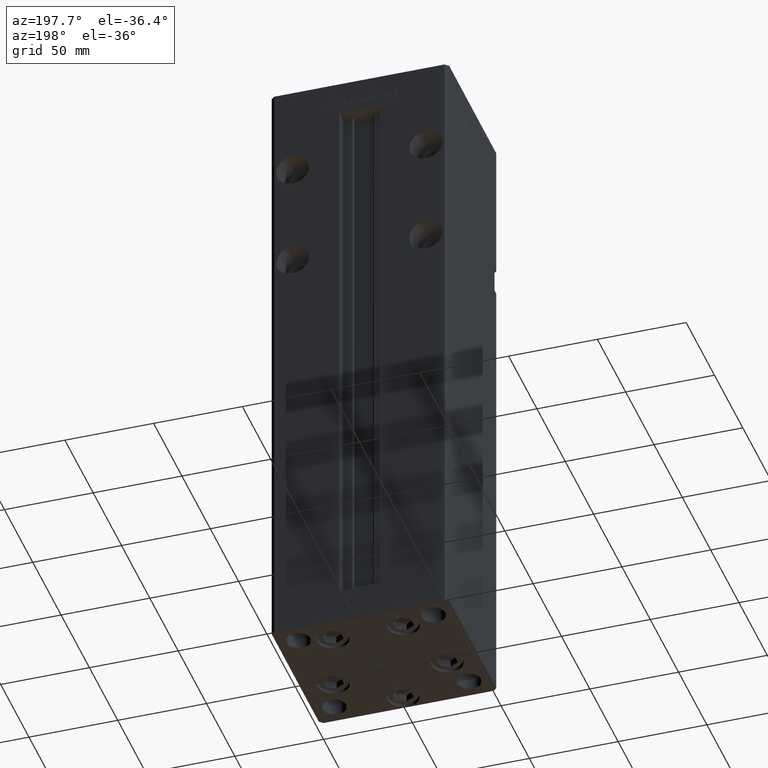
[diagram: clean part render]
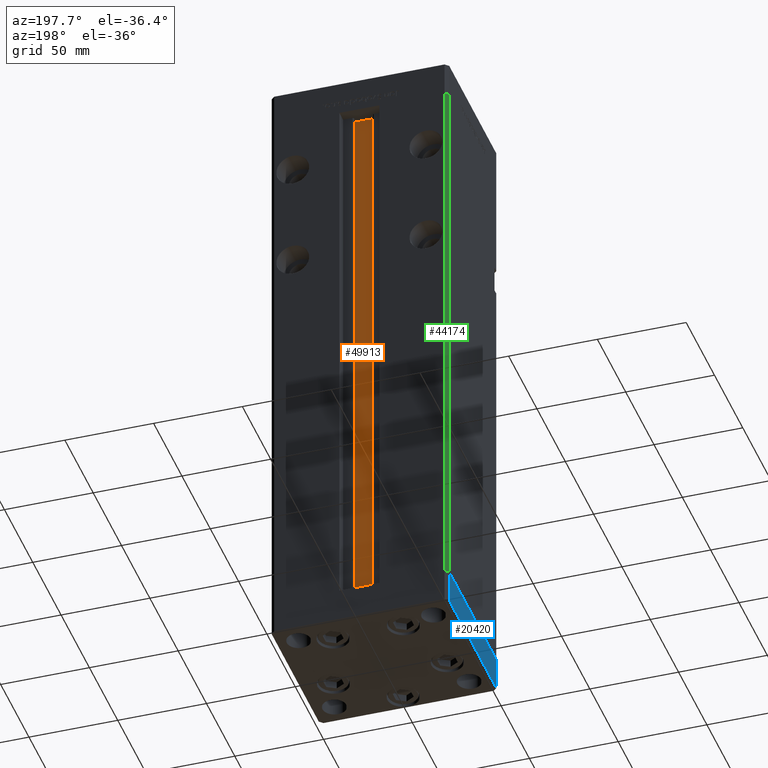
[diagram: same view with three faces highlighted in distinct colors, each labeled with its STEP entity id]
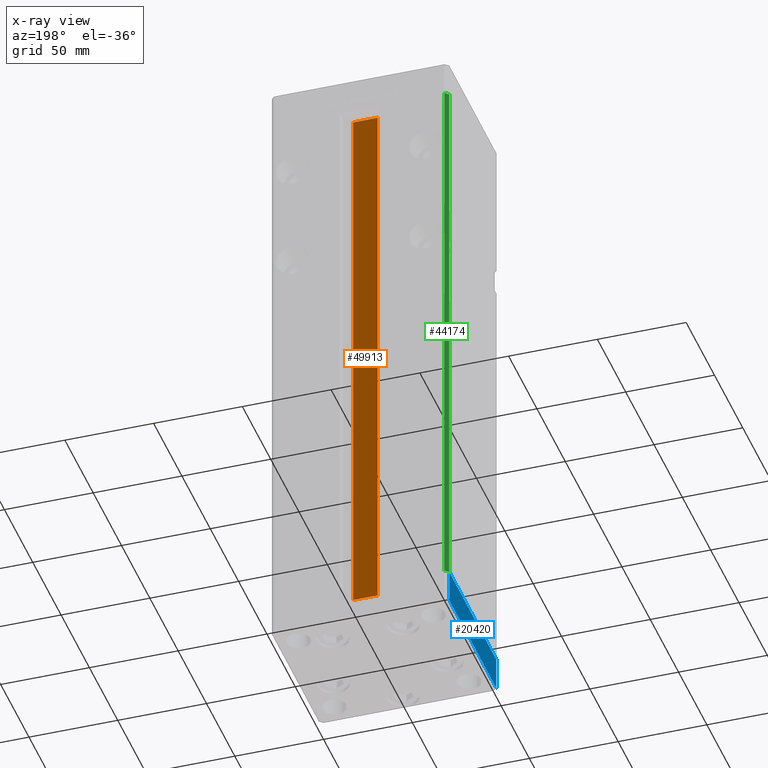
[diagram: x-ray of the same camera — body ghosted, the three highlighted faces saturated]
A machine part, auxiliary view with three faces highlighted in distinct colors.
The next image is the same camera in x-ray (body ghosted, the three faces saturated) — at least one of them is partly hidden behind the body in this view.
Their STEP definitions:

[orange] entity #49913 — the highlighted planar face has unit normal (0, -1, 0).
#5512 = FACE_OUTER_BOUND ( 'NONE', #8457, .T. ) ;
#5887 = LINE ( 'NONE', #17430, #48383 ) ;
#6080 = CARTESIAN_POINT ( 'NONE',  ( 6.876153656360465050, 32.99999999999986500, 0.000000000000000000 ) ) ;
#6786 = ORIENTED_EDGE ( 'NONE', *, *, #26478, .T. ) ;
#7246 = VERTEX_POINT ( 'NONE', #47510 ) ;
#7488 = EDGE_CURVE ( 'NONE', #12341, #36161, #9813, .T. ) ;
#8457 = EDGE_LOOP ( 'NONE', ( #29293, #52105, #6786, #41249 ) ) ;
#9813 = LINE ( 'NONE', #6080, #19555 ) ;
#12341 = VERTEX_POINT ( 'NONE', #13736 ) ;
#12616 = LINE ( 'NONE', #44599, #33619 ) ;
#13736 = CARTESIAN_POINT ( 'NONE',  ( -6.876153656360465050, 32.99999999999986500, 0.000000000000000000 ) ) ;
#13851 = DIRECTION ( 'NONE',  ( 1.000000000000000000, -0.000000000000000000, -0.000000000000000000 ) ) ;
#16894 = DIRECTION ( 'NONE',  ( -1.000000000000000000, 0.000000000000000000, 0.000000000000000000 ) ) ;
#17430 = CARTESIAN_POINT ( 'NONE',  ( 6.876153656360465050, 32.99999999999986500, 0.000000000000000000 ) ) ;
#18351 = EDGE_CURVE ( 'NONE', #43061, #7246, #12616, .T. ) ;
#19555 = VECTOR ( 'NONE', #13851, 1000.000000000000000 ) ;
#22488 = DIRECTION ( 'NONE',  ( -0.000000000000000000, -0.000000000000000000, 1.000000000000000000 ) ) ;
#22509 = DIRECTION ( 'NONE',  ( -0.000000000000000000, -0.000000000000000000, 1.000000000000000000 ) ) ;
#25761 = EDGE_CURVE ( 'NONE', #36161, #43061, #5887, .T. ) ;
#26478 = EDGE_CURVE ( 'NONE', #12341, #7246, #31093, .T. ) ;
#29293 = ORIENTED_EDGE ( 'NONE', *, *, #25761, .F. ) ;
#29967 = AXIS2_PLACEMENT_3D ( 'NONE', #42042, #46881, #37990 ) ;
#30467 = PLANE ( 'NONE',  #29967 ) ;
#31093 = LINE ( 'NONE', #34569, #52666 ) ;
#33619 = VECTOR ( 'NONE', #16894, 1000.000000000000000 ) ;
#34569 = CARTESIAN_POINT ( 'NONE',  ( -6.876153656360465050, 32.99999999999986500, 0.000000000000000000 ) ) ;
#36161 = VERTEX_POINT ( 'NONE', #39537 ) ;
#37990 = DIRECTION ( 'NONE',  ( 0.000000000000000000, 0.000000000000000000, -1.000000000000000000 ) ) ;
#39537 = CARTESIAN_POINT ( 'NONE',  ( 6.876153656360465050, 32.99999999999986500, 0.000000000000000000 ) ) ;
#41249 = ORIENTED_EDGE ( 'NONE', *, *, #18351, .F. ) ;
#42042 = CARTESIAN_POINT ( 'NONE',  ( 6.876153656360465050, 32.99999999999986500, 0.000000000000000000 ) ) ;
#43061 = VERTEX_POINT ( 'NONE', #47913 ) ;
#44599 = CARTESIAN_POINT ( 'NONE',  ( 0.000000000000000000, 32.99999999999986500, 318.5000000000000000 ) ) ;
#46881 = DIRECTION ( 'NONE',  ( 0.000000000000000000, -1.000000000000000000, -0.000000000000000000 ) ) ;
#47510 = CARTESIAN_POINT ( 'NONE',  ( -6.876153656360465050, 32.99999999999986500, 318.5000000000000000 ) ) ;
#47913 = CARTESIAN_POINT ( 'NONE',  ( 6.876153656360465050, 32.99999999999986500, 318.5000000000000000 ) ) ;
#48383 = VECTOR ( 'NONE', #22509, 1000.000000000000000 ) ;
#49913 = ADVANCED_FACE ( 'NONE', ( #5512 ), #30467, .F. ) ;
#52105 = ORIENTED_EDGE ( 'NONE', *, *, #7488, .F. ) ;
#52666 = VECTOR ( 'NONE', #22488, 1000.000000000000000 ) ;

[blue] entity #20420 — the highlighted planar face has unit normal (-1, -0, 0).
#704 = CARTESIAN_POINT ( 'NONE',  ( 49.99999999999992184, 41.49999999999998579, -19.00000000000000000 ) ) ;
#2359 = VECTOR ( 'NONE', #21954, 1000.000000000000000 ) ;
#2789 = CARTESIAN_POINT ( 'NONE',  ( 50.00000000000000000, -41.49999999999999289, 0.000000000000000000 ) ) ;
#3205 = CARTESIAN_POINT ( 'NONE',  ( 49.99999999999992184, 41.49999999999998579, 0.000000000000000000 ) ) ;
#6517 = ORIENTED_EDGE ( 'NONE', *, *, #8811, .F. ) ;
#8272 = LINE ( 'NONE', #9041, #43949 ) ;
#8300 = VERTEX_POINT ( 'NONE', #21127 ) ;
#8811 = EDGE_CURVE ( 'NONE', #8300, #34014, #23446, .T. ) ;
#8952 = DIRECTION ( 'NONE',  ( -1.003213576468515193E-15, 1.000000000000000000, 0.000000000000000000 ) ) ;
#9041 = CARTESIAN_POINT ( 'NONE',  ( 50.00000000000000000, -41.49999999999999289, -19.00000000000000000 ) ) ;
#9359 = LINE ( 'NONE', #37565, #2359 ) ;
#9447 = ORIENTED_EDGE ( 'NONE', *, *, #26539, .T. ) ;
#10602 = EDGE_LOOP ( 'NONE', ( #6517, #23252, #9447, #31188 ) ) ;
#11660 = DIRECTION ( 'NONE',  ( -1.003213576468515193E-15, 1.000000000000000000, 0.000000000000000000 ) ) ;
#20420 = ADVANCED_FACE ( 'NONE', ( #21034 ), #20515, .T. ) ;
#20515 = PLANE ( 'NONE',  #21659 ) ;
#21034 = FACE_OUTER_BOUND ( 'NONE', #10602, .T. ) ;
#21127 = CARTESIAN_POINT ( 'NONE',  ( 50.00000000000000000, -41.49999999999999289, 0.000000000000000000 ) ) ;
#21659 = AXIS2_PLACEMENT_3D ( 'NONE', #29098, #45515, #8952 ) ;
#21954 = DIRECTION ( 'NONE',  ( 0.000000000000000000, 0.000000000000000000, 1.000000000000000000 ) ) ;
#22027 = EDGE_CURVE ( 'NONE', #48017, #8300, #8272, .T. ) ;
#23252 = ORIENTED_EDGE ( 'NONE', *, *, #22027, .F. ) ;
#23446 = LINE ( 'NONE', #2789, #30724 ) ;
#26539 = EDGE_CURVE ( 'NONE', #48017, #42445, #32052, .T. ) ;
#29098 = CARTESIAN_POINT ( 'NONE',  ( 50.00000000000000000, -41.49999999999999289, -19.00000000000000000 ) ) ;
#30724 = VECTOR ( 'NONE', #40110, 1000.000000000000000 ) ;
#31188 = ORIENTED_EDGE ( 'NONE', *, *, #38304, .T. ) ;
#32052 = LINE ( 'NONE', #48477, #32868 ) ;
#32868 = VECTOR ( 'NONE', #11660, 1000.000000000000000 ) ;
#34014 = VERTEX_POINT ( 'NONE', #3205 ) ;
#37565 = CARTESIAN_POINT ( 'NONE',  ( 49.99999999999992184, 41.49999999999998579, -19.00000000000000000 ) ) ;
#38304 = EDGE_CURVE ( 'NONE', #42445, #34014, #9359, .T. ) ;
#40110 = DIRECTION ( 'NONE',  ( -1.003213576468515193E-15, 1.000000000000000000, 0.000000000000000000 ) ) ;
#42445 = VERTEX_POINT ( 'NONE', #704 ) ;
#43155 = CARTESIAN_POINT ( 'NONE',  ( 50.00000000000000000, -41.49999999999999289, -19.00000000000000000 ) ) ;
#43949 = VECTOR ( 'NONE', #49375, 1000.000000000000000 ) ;
#45515 = DIRECTION ( 'NONE',  ( 1.000000000000000000, 1.003213576468515193E-15, -0.000000000000000000 ) ) ;
#48017 = VERTEX_POINT ( 'NONE', #43155 ) ;
#48477 = CARTESIAN_POINT ( 'NONE',  ( 50.00000000000000000, -41.49999999999999289, -19.00000000000000000 ) ) ;
#49375 = DIRECTION ( 'NONE',  ( 0.000000000000000000, 0.000000000000000000, 1.000000000000000000 ) ) ;

[green] entity #44174 — the highlighted planar face has unit normal (0.7071, -0.7071, 0).
#793 = DIRECTION ( 'NONE',  ( 0.7071067811865487940, 0.7071067811865463515, 0.000000000000000000 ) ) ;
#1311 = FACE_OUTER_BOUND ( 'NONE', #49135, .T. ) ;
#1638 = CARTESIAN_POINT ( 'NONE',  ( -50.00000000000001421, 41.49999999999999289, 318.5000000000000000 ) ) ;
#3451 = ORIENTED_EDGE ( 'NONE', *, *, #8031, .F. ) ;
#8031 = EDGE_CURVE ( 'NONE', #24143, #29287, #37631, .T. ) ;
#8344 = PLANE ( 'NONE',  #27354 ) ;
#9850 = LINE ( 'NONE', #22183, #47519 ) ;
#10835 = LINE ( 'NONE', #11104, #17668 ) ;
#11104 = CARTESIAN_POINT ( 'NONE',  ( -48.00000000000000711, 43.50000000000000000, 318.5000000000000000 ) ) ;
#12367 = DIRECTION ( 'NONE',  ( 0.7071067811865463515, -0.7071067811865487940, 0.000000000000000000 ) ) ;
#12382 = LINE ( 'NONE', #41638, #24212 ) ;
#17668 = VECTOR ( 'NONE', #39562, 1000.000000000000000 ) ;
#18430 = DIRECTION ( 'NONE',  ( -0.7071067811865487940, -0.7071067811865463515, 0.000000000000000000 ) ) ;
#21244 = CARTESIAN_POINT ( 'NONE',  ( -48.00000000000000711, 43.50000000000000000, 0.000000000000000000 ) ) ;
#22183 = CARTESIAN_POINT ( 'NONE',  ( -48.00000000000000711, 43.50000000000000000, 0.000000000000000000 ) ) ;
#23789 = EDGE_CURVE ( 'NONE', #34886, #24143, #12382, .T. ) ;
#24143 = VERTEX_POINT ( 'NONE', #30212 ) ;
#24212 = VECTOR ( 'NONE', #24713, 1000.000000000000000 ) ;
#24713 = DIRECTION ( 'NONE',  ( -0.7071067811865487940, -0.7071067811865463515, 0.000000000000000000 ) ) ;
#27354 = AXIS2_PLACEMENT_3D ( 'NONE', #49442, #12367, #793 ) ;
#28034 = VECTOR ( 'NONE', #41933, 1000.000000000000000 ) ;
#28318 = EDGE_CURVE ( 'NONE', #52171, #29287, #9850, .T. ) ;
#29287 = VERTEX_POINT ( 'NONE', #31338 ) ;
#30212 = CARTESIAN_POINT ( 'NONE',  ( -50.00000000000001421, 41.49999999999999289, 318.5000000000000000 ) ) ;
#31338 = CARTESIAN_POINT ( 'NONE',  ( -50.00000000000001421, 41.49999999999999289, 0.000000000000000000 ) ) ;
#34886 = VERTEX_POINT ( 'NONE', #44504 ) ;
#35743 = ORIENTED_EDGE ( 'NONE', *, *, #39147, .T. ) ;
#37631 = LINE ( 'NONE', #1638, #28034 ) ;
#39147 = EDGE_CURVE ( 'NONE', #34886, #52171, #10835, .T. ) ;
#39562 = DIRECTION ( 'NONE',  ( -0.000000000000000000, -0.000000000000000000, -1.000000000000000000 ) ) ;
#40858 = ORIENTED_EDGE ( 'NONE', *, *, #28318, .T. ) ;
#41638 = CARTESIAN_POINT ( 'NONE',  ( -48.00000000000000711, 43.50000000000000000, 318.5000000000000000 ) ) ;
#41807 = ORIENTED_EDGE ( 'NONE', *, *, #23789, .F. ) ;
#41933 = DIRECTION ( 'NONE',  ( -0.000000000000000000, -0.000000000000000000, -1.000000000000000000 ) ) ;
#44174 = ADVANCED_FACE ( 'NONE', ( #1311 ), #8344, .F. ) ;
#44504 = CARTESIAN_POINT ( 'NONE',  ( -48.00000000000000711, 43.50000000000000000, 318.5000000000000000 ) ) ;
#47519 = VECTOR ( 'NONE', #18430, 1000.000000000000000 ) ;
#49135 = EDGE_LOOP ( 'NONE', ( #40858, #3451, #41807, #35743 ) ) ;
#49442 = CARTESIAN_POINT ( 'NONE',  ( -48.00000000000000711, 43.50000000000000000, 318.5000000000000000 ) ) ;
#52171 = VERTEX_POINT ( 'NONE', #21244 ) ;